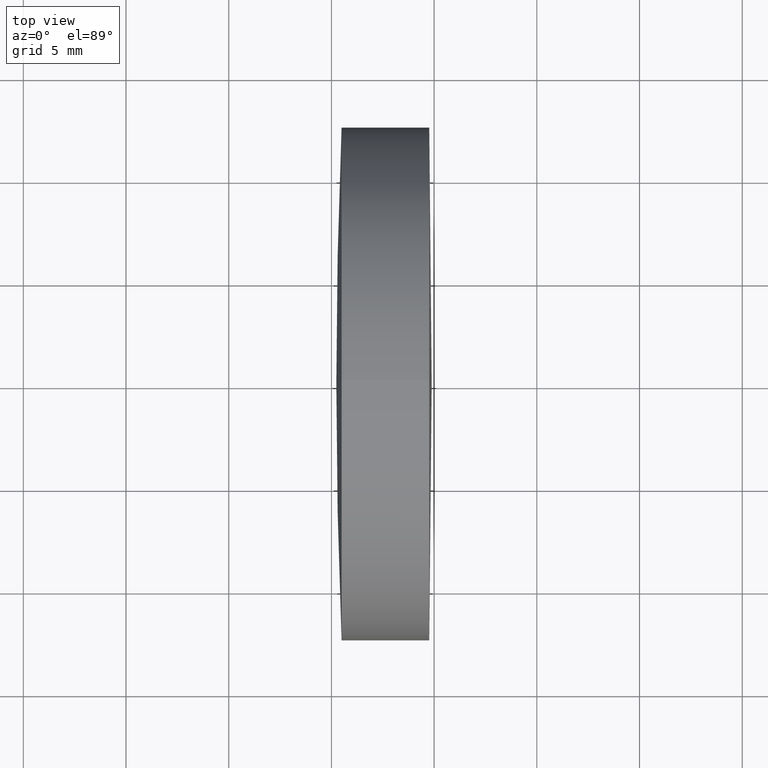
[diagram: clean part render]
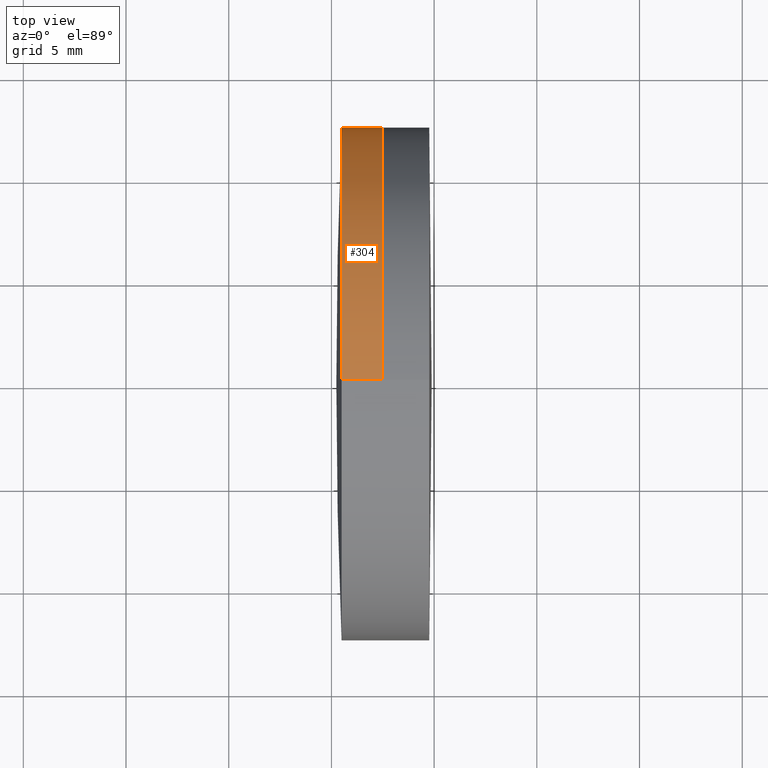
[diagram: same view with one face highlighted and labeled with its STEP entity id]
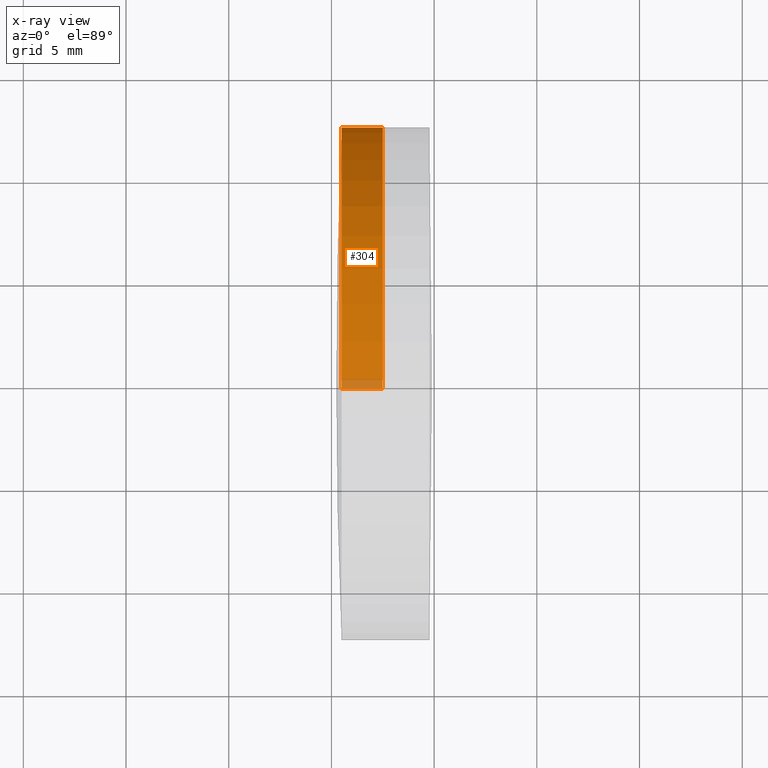
[diagram: x-ray of the same camera — body ghosted, the highlighted face saturated]
A machine part, top view. The second image highlights one B-rep face of the part: STEP entity #304.
The next image is the same camera in x-ray: the body ghosted, the highlighted face saturated — about 3% of this face is hidden behind the body in this view.
In plain terms, the highlighted cylindrical surface (partial cylindrical patch) has radius 12.5 mm, axis along (-1, -0, -0).
Its self-contained STEP definition (entity closure, byte-faithful):
#5 = VERTEX_POINT ( 'NONE', #134 ) ;
#17 = VERTEX_POINT ( 'NONE', #166 ) ;
#20 = DIRECTION ( 'NONE',  ( -1.000000000000000000, -0.0000000000000000000, -0.0000000000000000000 ) ) ;
#42 = CARTESIAN_POINT ( 'NONE',  ( 217.4944512575927400, 0.0000000000000000000, 0.0000000000000000000 ) ) ;
#45 = ORIENTED_EDGE ( 'NONE', *, *, #271, .T. ) ;
#48 = ORIENTED_EDGE ( 'NONE', *, *, #117, .F. ) ;
#69 = DIRECTION ( 'NONE',  ( 0.0000000000000000000, 0.0000000000000000000, 1.000000000000000000 ) ) ;
#71 = ORIENTED_EDGE ( 'NONE', *, *, #135, .T. ) ;
#86 = VERTEX_POINT ( 'NONE', #243 ) ;
#92 = VECTOR ( 'NONE', #95, 1000.000000000000000 ) ;
#95 = DIRECTION ( 'NONE',  ( -1.000000000000000000, -0.0000000000000000000, -0.0000000000000000000 ) ) ;
#96 = LINE ( 'NONE', #178, #295 ) ;
#98 = DIRECTION ( 'NONE',  ( -1.000000000000000000, -0.0000000000000000000, -0.0000000000000000000 ) ) ;
#107 = AXIS2_PLACEMENT_3D ( 'NONE', #42, #236, #69 ) ;
#117 = EDGE_CURVE ( 'NONE', #17, #342, #232, .T. ) ;
#120 = DIRECTION ( 'NONE',  ( 0.0000000000000000000, 0.0000000000000000000, 1.000000000000000000 ) ) ;
#134 = CARTESIAN_POINT ( 'NONE',  ( 217.4944512575927400, 1.530808498934191300E-015, -12.49999999999999800 ) ) ;
#135 = EDGE_CURVE ( 'NONE', #5, #342, #96, .T. ) ;
#152 = CARTESIAN_POINT ( 'NONE',  ( 215.4942533599098600, 0.0000000000000000000, 0.0000000000000000000 ) ) ;
#154 = DIRECTION ( 'NONE',  ( 0.0000000000000000000, 0.0000000000000000000, 1.000000000000000000 ) ) ;
#166 = CARTESIAN_POINT ( 'NONE',  ( 215.4942533599098600, 0.0000000000000000000, 12.49999999999993100 ) ) ;
#167 = LINE ( 'NONE', #204, #92 ) ;
#168 = AXIS2_PLACEMENT_3D ( 'NONE', #338, #20, #154 ) ;
#178 = CARTESIAN_POINT ( 'NONE',  ( -9.702612178336682500, 1.530808498934191300E-015, -12.49999999999999800 ) ) ;
#180 = CARTESIAN_POINT ( 'NONE',  ( 215.4942533599098600, 1.530808498934183000E-015, -12.49999999999993400 ) ) ;
#204 = CARTESIAN_POINT ( 'NONE',  ( -9.702612178336682500, 0.0000000000000000000, 12.49999999999999800 ) ) ;
#219 = AXIS2_PLACEMENT_3D ( 'NONE', #152, #337, #120 ) ;
#222 = CIRCLE ( 'NONE', #107, 12.49999999999999800 ) ;
#232 = CIRCLE ( 'NONE', #219, 12.49999999999999800 ) ;
#236 = DIRECTION ( 'NONE',  ( -1.000000000000000000, -0.0000000000000000000, -0.0000000000000000000 ) ) ;
#241 = EDGE_CURVE ( 'NONE', #86, #17, #167, .T. ) ;
#243 = CARTESIAN_POINT ( 'NONE',  ( 217.4944512575927400, 0.0000000000000000000, 12.49999999999999800 ) ) ;
#269 = EDGE_LOOP ( 'NONE', ( #45, #71, #48, #323 ) ) ;
#271 = EDGE_CURVE ( 'NONE', #86, #5, #222, .T. ) ;
#274 = CYLINDRICAL_SURFACE ( 'NONE', #168, 12.49999999999999800 ) ;
#289 = FACE_OUTER_BOUND ( 'NONE', #269, .T. ) ;
#295 = VECTOR ( 'NONE', #98, 1000.000000000000000 ) ;
#304 = ADVANCED_FACE ( 'NONE', ( #289 ), #274, .T. ) ;
#323 = ORIENTED_EDGE ( 'NONE', *, *, #241, .F. ) ;
#337 = DIRECTION ( 'NONE',  ( -1.000000000000000000, -0.0000000000000000000, -0.0000000000000000000 ) ) ;
#338 = CARTESIAN_POINT ( 'NONE',  ( -9.702612178336682500, 0.0000000000000000000, 0.0000000000000000000 ) ) ;
#342 = VERTEX_POINT ( 'NONE', #180 ) ;